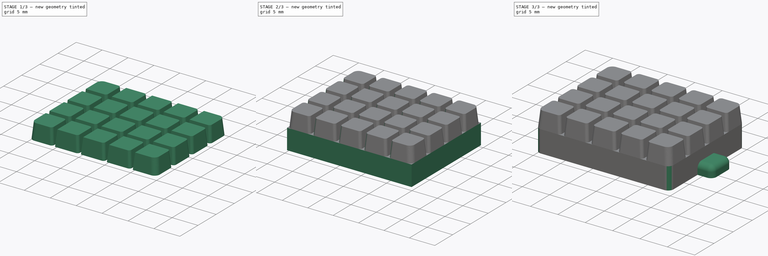
[diagram: build sequence overview — one tinted view per stage of 3, left to right]
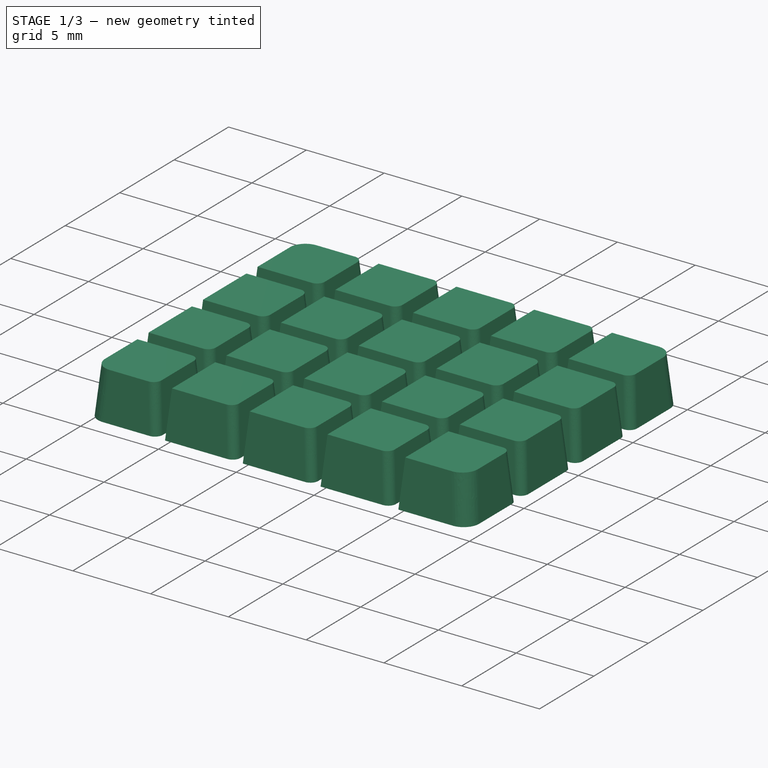
[diagram: stage 1 of 3 — iso view after this stage's code; geometry added in this stage tinted green]
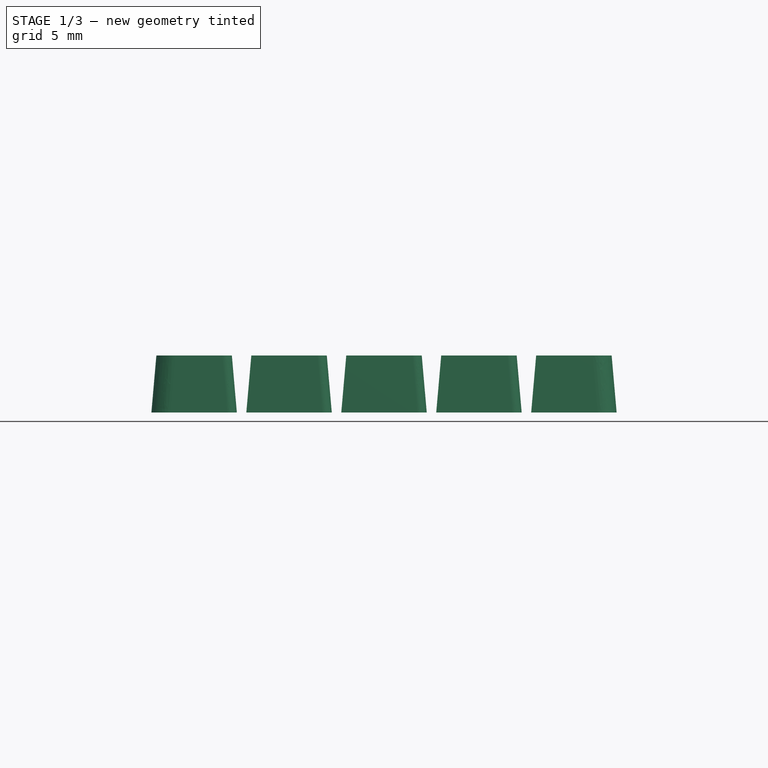
[diagram: stage 1 of 3 — front view after this stage's code; geometry added in this stage tinted green]
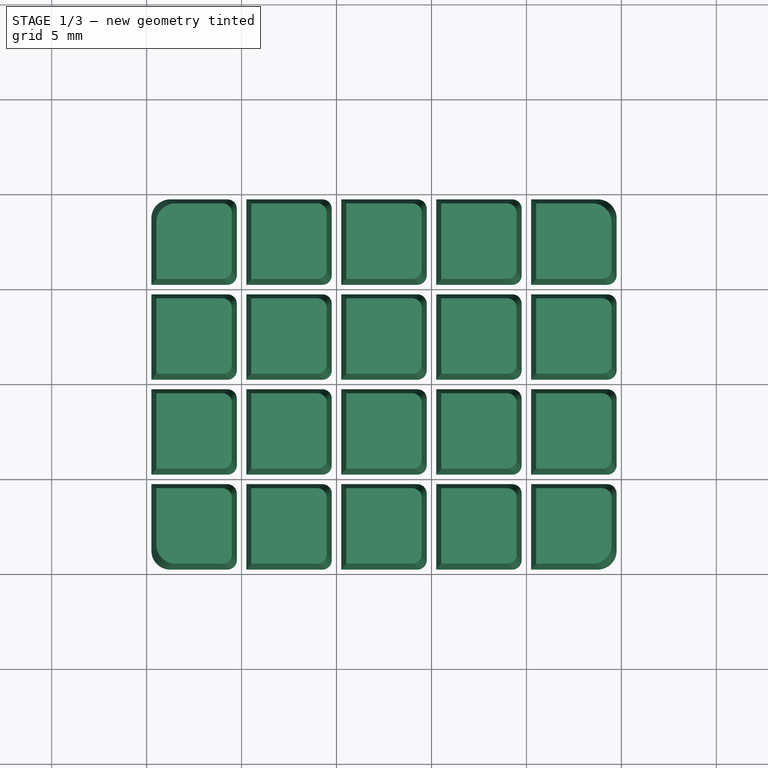
[diagram: stage 1 of 3 — top view after this stage's code; geometry added in this stage tinted green]
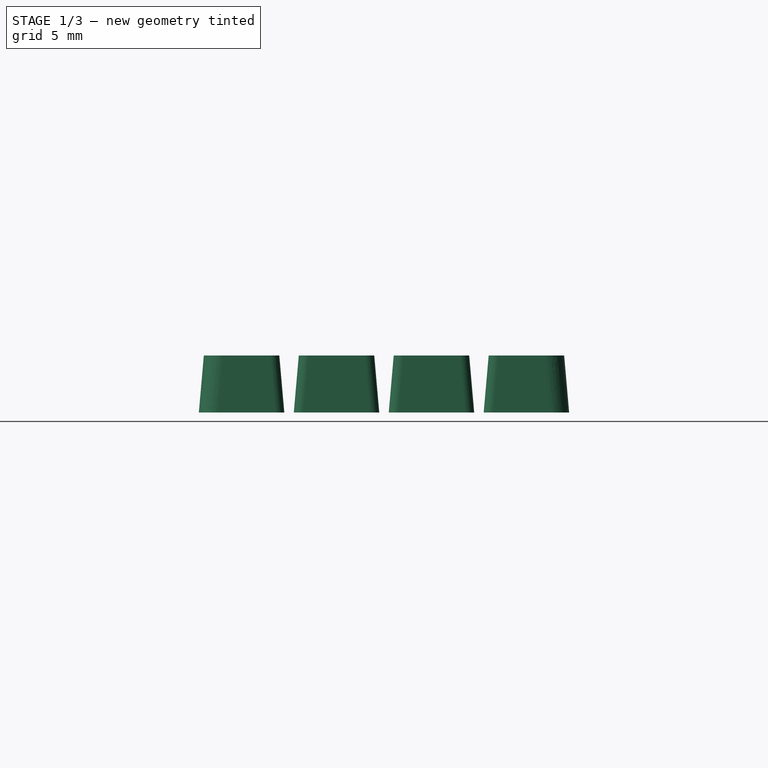
[diagram: stage 1 of 3 — right view after this stage's code; geometry added in this stage tinted green]
FCSTD DOCUMENT  (FreeCAD 0.16R6712 (Git))
Label: weight_matrix
License: All rights reserved
LicenseURL: http://en.wikipedia.org/wiki/All_rights_reserved
objects: Part::Fillet×5, Sketcher::SketchObject×2, Part::Extrusion×2, Spreadsheet::Sheet×1, Part::Box×1
note: 10 computed .brp shape members not serialized (recipe doc carries the construction recipe); baked Part::Feature solids carry a one-line shape summary decoded from their .brp

FEATURE [Sketcher::SketchObject] Sketch
  expr: Constraints[168] = Spreadsheet.space * 2
  expr: Constraints[93] = Spreadsheet.space * 2
  expr: Constraints[91] = Spreadsheet.space * 2
  expr: Constraints[165] = Spreadsheet.space * 2
  expr: Constraints[90] = Spreadsheet.space * 2
  expr: Constraints[169] = Spreadsheet.space
  expr: Constraints[167] = Spreadsheet.space * 2
  expr: Constraints[94] = Spreadsheet.space * 2
  expr: Constraints[97] = Spreadsheet.space
  expr: Constraints[60] = Spreadsheet.space * 2
  expr: Constraints[38] = Spreadsheet.space
  expr: Constraints[11] = Spreadsheet.space
  expr: Constraints[8] = Spreadsheet.width
  expr: Constraints[171] = Spreadsheet.space * 2
  expr: Constraints[39] = Spreadsheet.space
  expr: Constraints[172] = Spreadsheet.space * 2
  expr: Constraints[173] = Spreadsheet.space * 2
  expr: Constraints[40] = Spreadsheet.space
  expr: Constraints[174] = Spreadsheet.space * 2
  expr: Constraints[37] = Spreadsheet.space
  expr: Constraints[166] = Spreadsheet.space * 2
  expr: Constraints[36] = Spreadsheet.space
  expr: Constraints[175] = Spreadsheet.space * 2
  expr: Constraints[170] = Spreadsheet.space * 2
  expr: Constraints[176] = Spreadsheet.space * 2
  expr: Constraints[58] = Spreadsheet.space * 2
  expr: Constraints[92] = Spreadsheet.space * 2
  expr: Constraints[226] = Spreadsheet.space * 2
  expr: Constraints[224] = Spreadsheet.space * 2
  expr: Constraints[223] = Spreadsheet.space * 2
  expr: Constraints[227] = Spreadsheet.space * 2
  expr: Constraints[225] = Spreadsheet.space * 2
  expr: Constraints[59] = Spreadsheet.space * 2
  expr: Constraints[228] = Spreadsheet.space * 2
  expr: Constraints[222] = Spreadsheet.space * 2
  expr: Constraints[41] = Spreadsheet.space
  expr: Constraints[177] = Spreadsheet.space * 2
  expr: Constraints[9] = Spreadsheet.height
  expr: Constraints[10] = Spreadsheet.space
  expr: Constraints[61] = Spreadsheet.space
  expr: Constraints[229] = Spreadsheet.space
  expr: Constraints[181] = Spreadsheet.space
  sketch-geometry (80):
    g0: LineSegment StartX=-4.75 StartY=4.75 StartZ=0 EndX=-0.25 EndY=4.75 EndZ=0
    g1: LineSegment StartX=-0.25 StartY=4.75 StartZ=0 EndX=-0.25 EndY=0.25 EndZ=0
    g2: LineSegment StartX=-0.25 StartY=0.25 StartZ=0 EndX=-4.75 EndY=0.25 EndZ=0
    g3: LineSegment StartX=-4.75 StartY=0.25 StartZ=0 EndX=-4.75 EndY=4.75 EndZ=0
    g4: LineSegment StartX=0.25 StartY=4.75 StartZ=0 EndX=4.75 EndY=4.75 EndZ=0
    g5: LineSegment StartX=4.75 StartY=4.75 StartZ=0 EndX=4.75 EndY=0.25 EndZ=0
    g6: LineSegment StartX=4.75 StartY=0.25 StartZ=0 EndX=0.25 EndY=0.25 EndZ=0
    g7: LineSegment StartX=0.25 StartY=0.25 StartZ=0 EndX=0.25 EndY=4.75 EndZ=0
    g8: LineSegment StartX=0.25 StartY=-0.25 StartZ=0 EndX=4.75 EndY=-0.25 EndZ=0
    g9: LineSegment StartX=4.75 StartY=-0.25 StartZ=0 EndX=4.75 EndY=-4.75 EndZ=0
    g10: LineSegment StartX=4.75 StartY=-4.75 StartZ=0 EndX=0.25 EndY=-4.75 EndZ=0
    g11: LineSegment StartX=0.25 StartY=-4.75 StartZ=0 EndX=0.25 EndY=-0.25 EndZ=0
    g12: LineSegment StartX=-4.75 StartY=-0.25 StartZ=0 EndX=-0.25 EndY=-0.25 EndZ=0
    g13: LineSegment StartX=-0.25 StartY=-0.25 StartZ=0 EndX=-0.25 EndY=-4.75 EndZ=0
    g14: LineSegment StartX=-0.25 StartY=-4.75 StartZ=0 EndX=-4.75 EndY=-4.75 EndZ=0
    g15: LineSegment StartX=-4.75 StartY=-4.75 StartZ=0 EndX=-4.75 EndY=-0.25 EndZ=0
    g16: LineSegment StartX=-4.75 StartY=-5.25 StartZ=0 EndX=-0.25 EndY=-5.25 EndZ=0
    g17: LineSegment StartX=-0.25 StartY=-5.25 StartZ=0 EndX=-0.25 EndY=-9.75 EndZ=0
    g18: LineSegment StartX=-0.25 StartY=-9.75 StartZ=0 EndX=-4.75 EndY=-9.75 EndZ=0
    g19: LineSegment StartX=-4.75 StartY=-9.75 StartZ=0 EndX=-4.75 EndY=-5.25 EndZ=0
    g20: LineSegment StartX=0.25 StartY=-5.25 StartZ=0 EndX=4.75 EndY=-5.25 EndZ=0
    g21: LineSegment StartX=4.75 StartY=-5.25 StartZ=0 EndX=4.75 EndY=-9.75 EndZ=0
    g22: LineSegment StartX=4.75 StartY=-9.75 StartZ=0 EndX=0.25 EndY=-9.75 EndZ=0
    g23: LineSegment StartX=0.25 StartY=-9.75 StartZ=0 EndX=0.25 EndY=-5.25 EndZ=0
    g24: LineSegment StartX=5.25 StartY=4.75 StartZ=0 EndX=9.75 EndY=4.75 EndZ=0
    g25: LineSegment StartX=9.75 StartY=4.75 StartZ=0 EndX=9.75 EndY=0.25 EndZ=0
    g26: LineSegment StartX=9.75 StartY=0.25 StartZ=0 EndX=5.25 EndY=0.25 EndZ=0
    g27: LineSegment StartX=5.25 StartY=0.25 StartZ=0 EndX=5.25 EndY=4.75 EndZ=0
    g28: LineSegment StartX=5.25 StartY=-0.25 StartZ=0 EndX=9.75 EndY=-0.25 EndZ=0
    g29: LineSegment StartX=9.75 StartY=-0.25 StartZ=0 EndX=9.75 EndY=-4.75 EndZ=0
    g30: LineSegment StartX=9.75 StartY=-4.75 StartZ=0 EndX=5.25 EndY=-4.75 EndZ=0
    g31: LineSegment StartX=5.25 StartY=-4.75 StartZ=0 EndX=5.25 EndY=-0.25 EndZ=0
    g32: LineSegment StartX=5.25 StartY=-5.25 StartZ=0 EndX=9.75 EndY=-5.25 EndZ=0
    g33: LineSegment StartX=9.75 StartY=-5.25 StartZ=0 EndX=9.75 EndY=-9.75 EndZ=0
    g34: LineSegment StartX=9.75 StartY=-9.75 StartZ=0 EndX=5.25 EndY=-9.75 EndZ=0
    g35: LineSegment StartX=5.25 StartY=-9.75 StartZ=0 EndX=5.25 EndY=-5.25 EndZ=0
    g36: LineSegment StartX=-4.75 StartY=-10.25 StartZ=0 EndX=-0.25 EndY=-10.25 EndZ=0
    g37: LineSegment StartX=-0.25 StartY=-10.25 StartZ=0 EndX=-0.25 EndY=-14.75 EndZ=0
    g38: LineSegment StartX=-0.25 StartY=-14.75 StartZ=0 EndX=-4.75 EndY=-14.75 EndZ=0
    g39: LineSegment StartX=-4.75 StartY=-14.75 StartZ=0 EndX=-4.75 EndY=-10.25 EndZ=0
    g40: LineSegment StartX=0.25 StartY=-10.25 StartZ=0 EndX=4.75 EndY=-10.25 EndZ=0
    g41: LineSegment StartX=4.75 StartY=-10.25 StartZ=0 EndX=4.75 EndY=-14.75 EndZ=0
    g42: LineSegment StartX=4.75 StartY=-14.75 StartZ=0 EndX=0.25 EndY=-14.75 EndZ=0
    g43: LineSegment StartX=0.25 StartY=-14.75 StartZ=0 EndX=0.25 EndY=-10.25 EndZ=0
    g44: LineSegment StartX=5.25 StartY=-10.25 StartZ=0 EndX=9.75 EndY=-10.25 EndZ=0
    g45: LineSegment StartX=9.75 StartY=-10.25 StartZ=0 EndX=9.75 EndY=-14.75 EndZ=0
    g46: LineSegment StartX=9.75 StartY=-14.75 StartZ=0 EndX=5.25 EndY=-14.75 EndZ=0
    g47: LineSegment StartX=5.25 StartY=-14.75 StartZ=0 EndX=5.25 EndY=-10.25 EndZ=0
    g48: LineSegment StartX=10.25 StartY=-10.25 StartZ=0 EndX=14.75 EndY=-10.25 EndZ=0
    g49: LineSegment StartX=14.75 StartY=-10.25 StartZ=0 EndX=14.75 EndY=-14.75 EndZ=0
    g50: LineSegment StartX=14.75 StartY=-14.75 StartZ=0 EndX=10.25 EndY=-14.75 EndZ=0
    g51: LineSegment StartX=10.25 StartY=-14.75 StartZ=0 EndX=10.25 EndY=-10.25 EndZ=0
    g52: LineSegment StartX=10.25 StartY=-5.25 StartZ=0 EndX=14.75 EndY=-5.25 EndZ=0
    g53: LineSegment StartX=14.75 StartY=-5.25 StartZ=0 EndX=14.75 EndY=-9.75 EndZ=0
    g54: LineSegment StartX=14.75 StartY=-9.75 StartZ=0 EndX=10.25 EndY=-9.75 EndZ=0
    g55: LineSegment StartX=10.25 StartY=-9.75 StartZ=0 EndX=10.25 EndY=-5.25 EndZ=0
    g56: LineSegment StartX=10.25 StartY=-0.25 StartZ=0 EndX=14.75 EndY=-0.25 EndZ=0
    g57: LineSegment StartX=14.75 StartY=-0.25 StartZ=0 EndX=14.75 EndY=-4.75 EndZ=0
    g58: LineSegment StartX=14.75 StartY=-4.75 StartZ=0 EndX=10.25 EndY=-4.75 EndZ=0
    g59: LineSegment StartX=10.25 StartY=-4.75 StartZ=0 EndX=10.25 EndY=-0.25 EndZ=0
    g60: LineSegment StartX=10.25 StartY=4.75 StartZ=0 EndX=14.75 EndY=4.75 EndZ=0
    g61: LineSegment StartX=14.75 StartY=4.75 StartZ=0 EndX=14.75 EndY=0.25 EndZ=0
    g62: LineSegment StartX=14.75 StartY=0.25 StartZ=0 EndX=10.25 EndY=0.25 EndZ=0
    g63: LineSegment StartX=10.25 StartY=0.25 StartZ=0 EndX=10.25 EndY=4.75 EndZ=0
    g64: LineSegment StartX=15.25 StartY=4.75 StartZ=0 EndX=19.75 EndY=4.75 EndZ=0
    g65: LineSegment StartX=19.75 StartY=4.75 StartZ=0 EndX=19.75 EndY=0.25 EndZ=0
    g66: LineSegment StartX=19.75 StartY=0.25 StartZ=0 EndX=15.25 EndY=0.25 EndZ=0
    g67: LineSegment StartX=15.25 StartY=0.25 StartZ=0 EndX=15.25 EndY=4.75 EndZ=0
    g68: LineSegment StartX=15.25 StartY=-0.25 StartZ=0 EndX=19.75 EndY=-0.25 EndZ=0
    g69: LineSegment StartX=19.75 StartY=-0.25 StartZ=0 EndX=19.75 EndY=-4.75 EndZ=0
    g70: LineSegment StartX=19.75 StartY=-4.75 StartZ=0 EndX=15.25 EndY=-4.75 EndZ=0
    g71: LineSegment StartX=15.25 StartY=-4.75 StartZ=0 EndX=15.25 EndY=-0.25 EndZ=0
    g72: LineSegment StartX=15.25 StartY=-5.25 StartZ=0 EndX=19.75 EndY=-5.25 EndZ=0
    g73: LineSegment StartX=19.75 StartY=-5.25 StartZ=0 EndX=19.75 EndY=-9.75 EndZ=0
    g74: LineSegment StartX=19.75 StartY=-9.75 StartZ=0 EndX=15.25 EndY=-9.75 EndZ=0
    g75: LineSegment StartX=15.25 StartY=-9.75 StartZ=0 EndX=15.25 EndY=-5.25 EndZ=0
    g76: LineSegment StartX=15.25 StartY=-10.25 StartZ=0 EndX=19.75 EndY=-10.25 EndZ=0
    g77: LineSegment StartX=19.75 StartY=-10.25 StartZ=0 EndX=19.75 EndY=-14.75 EndZ=0
    g78: LineSegment StartX=19.75 StartY=-14.75 StartZ=0 EndX=15.25 EndY=-14.75 EndZ=0
    g79: LineSegment StartX=15.25 StartY=-14.75 StartZ=0 EndX=15.25 EndY=-10.25 EndZ=0
  constraints (241):
    c: Coincident(g0,g1)
    c: Coincident(g1,g2)
    c: Coincident(g2,g3)
    c: Coincident(g3,g0)
    c: Horizontal(g0)
    c: Horizontal(g2)
    c: Vertical(g1)
    c: Vertical(g3)
    c: DistanceX(g2,g1) = 4.5
    c: DistanceY(g2,g0) = 4.5
    c: DistanceX(g1,g-1) = 0.25
    c: DistanceY(g-1,g1) = 0.25
    c: Coincident(g4,g5)
    c: Coincident(g5,g6)
    c: Coincident(g6,g7)
    c: Coincident(g7,g4)
    c: Horizontal(g4)
    c: Horizontal(g6)
    c: Vertical(g5)
    c: Vertical(g7)
    c: Coincident(g8,g9)
    c: Coincident(g9,g10)
    c: Coincident(g10,g11)
    c: Coincident(g11,g8)
    c: Horizontal(g8)
    c: Horizontal(g10)
    c: Vertical(g9)
    c: Vertical(g11)
    c: Coincident(g12,g13)
    c: Coincident(g13,g14)
    c: Coincident(g14,g15)
    c: Coincident(g15,g12)
    c: Horizontal(g12)
    c: Horizontal(g14)
    c: Vertical(g13)
    c: Vertical(g15)
    c: DistanceX(g-1,g6) = 0.25
    c: DistanceY(g-1,g6) = 0.25
    c: DistanceY(g8,g-1) = 0.25
    c: DistanceX(g-1,g8) = 0.25
    c: DistanceX(g12,g-1) = 0.25
    c: DistanceY(g12,g-1) = 0.25
    c: Coincident(g16,g17)
    c: Coincident(g17,g18)
    c: Coincident(g18,g19)
    c: Coincident(g19,g16)
    c: Horizontal(g16)
    c: Horizontal(g18)
    c: Vertical(g17)
    c: Vertical(g19)
    c: Coincident(g20,g21)
    c: Coincident(g21,g22)
    c: Coincident(g22,g23)
    c: Coincident(g23,g20)
    c: Horizontal(g20)
    c: Horizontal(g22)
    c: Vertical(g21)
    c: Vertical(g23)
    c: DistanceY(g16,g13) = 0.5
    c: DistanceY(g20,g10) = 0.5
    c: DistanceX(g16,g20) = 0.5
    c: DistanceX(g-1,g20) = 0.25
    c: Coincident(g24,g25)
    c: Coincident(g25,g26)
    c: Coincident(g26,g27)
    c: Coincident(g27,g24)
    c: Horizontal(g24)
    c: Horizontal(g26)
    c: Vertical(g25)
    c: Vertical(g27)
    c: Coincident(g28,g29)
    c: Coincident(g29,g30)
    c: Coincident(g30,g31)
    c: Coincident(g31,g28)
    c: Horizontal(g28)
    c: Horizontal(g30)
    c: Vertical(g29)
    c: Vertical(g31)
    c: Coincident(g32,g33)
    c: Coincident(g33,g34)
    c: Coincident(g34,g35)
    c: Coincident(g35,g32)
    c: Horizontal(g32)
    c: Horizontal(g34)
    c: Vertical(g33)
    c: Vertical(g35)
    c: Equal(g24,g28)
    c: Equal(g32,g24)
    c: Equal(g7,g27)
    c: Equal(g7,g25)
    c: DistanceX(g5,g26) = 0.5
    c: DistanceX(g8,g28) = 0.5
    c: DistanceX(g20,g32) = 0.5
    c: DistanceY(g32,g29) = 0.5
    c: DistanceY(g28,g25) = 0.5
    c: Equal(g34,g22)
    c: Equal(g31,g9)
    c: DistanceY(g-1,g25) = 0.25
    c: Coincident(g36,g37)
    c: Coincident(g37,g38)
    c: Coincident(g38,g39)
    c: Coincident(g39,g36)
    c: Horizontal(g36)
    c: Horizontal(g38)
    c: Vertical(g37)
    c: Vertical(g39)
    c: Coincident(g40,g41)
    c: Coincident(g41,g42)
    c: Coincident(g42,g43)
    c: Coincident(g43,g40)
    c: Horizontal(g40)
    c: Horizontal(g42)
    c: Vertical(g41)
    c: Vertical(g43)
    c: Coincident(g44,g45)
    c: Coincident(g45,g46)
    c: Coincident(g46,g47)
    c: Coincident(g47,g44)
    c: Horizontal(g44)
    c: Horizontal(g46)
    c: Vertical(g45)
    c: Vertical(g47)
    c: Coincident(g48,g49)
    c: Coincident(g49,g50)
    c: Coincident(g50,g51)
    c: Coincident(g51,g48)
    c: Horizontal(g48)
    c: Horizontal(g50)
    c: Vertical(g49)
    c: Vertical(g51)
    c: Coincident(g52,g53)
    c: Coincident(g53,g54)
    c: Coincident(g54,g55)
    c: Coincident(g55,g52)
    c: Horizontal(g52)
    c: Horizontal(g54)
    c: Vertical(g53)
    c: Vertical(g55)
    c: Coincident(g56,g57)
    c: Coincident(g57,g58)
    c: Coincident(g58,g59)
    c: Coincident(g59,g56)
    c: Horizontal(g56)
    c: Horizontal(g58)
    c: Vertical(g57)
    c: Vertical(g59)
    c: Coincident(g60,g61)
    c: Coincident(g61,g62)
    c: Coincident(g62,g63)
    c: Coincident(g63,g60)
    c: Horizontal(g60)
    c: Horizontal(g62)
    c: Vertical(g61)
    c: Vertical(g63)
    c: Equal(g39,g3)
    c: Equal(g43,g3)
    c: Equal(g47,g3)
    c: Equal(g51,g3)
    c: Equal(g55,g3)
    c: Equal(g59,g3)
    c: Equal(g63,g3)
    c: Equal(g60,g0)
    c: Equal(g56,g0)
    c: Equal(g52,g0)
    c: Equal(g48,g0)
    c: DistanceX(g24,g60) = 0.5
    c: DistanceX(g28,g56) = 0.5
    c: DistanceY(g56,g62) = 0.5
    c: DistanceY(g52,g58) = 0.5
    c: DistanceY(g-1,g62) = 0.25
    c: DistanceX(g33,g54) = 0.5
    c: DistanceX(g44,g48) = 0.5
    c: DistanceY(g48,g54) = 0.5
    c: DistanceY(g36,g18) = 0.5
    c: DistanceY(g40,g22) = 0.5
    c: DistanceY(g44,g34) = 0.5
    c: DistanceX(g36,g40) = 0.5
    c: DistanceX(g40,g44) = 0.5
    c: Equal(g44,g0)
    c: Equal(g40,g0)
    c: Equal(g36,g0)
    c: DistanceX(g37,g-1) = 0.25
    c: Coincident(g64,g65)
    c: Coincident(g65,g66)
    c: Coincident(g66,g67)
    c: Coincident(g67,g64)
    c: Horizontal(g64)
    c: Horizontal(g66)
    c: Vertical(g65)
    c: Vertical(g67)
    c: Coincident(g68,g69)
    c: Coincident(g69,g70)
    c: Coincident(g70,g71)
    c: Coincident(g71,g68)
    c: Horizontal(g68)
    c: Horizontal(g70)
    c: Vertical(g69)
    c: Vertical(g71)
    c: Coincident(g72,g73)
    c: Coincident(g73,g74)
    c: Coincident(g74,g75)
    c: Coincident(g75,g72)
    c: Horizontal(g72)
    c: Horizontal(g74)
    c: Vertical(g73)
    c: Vertical(g75)
    c: Coincident(g76,g77)
    c: Coincident(g77,g78)
    c: Coincident(g78,g79)
    c: Coincident(g79,g76)
    c: Horizontal(g76)
    c: Horizontal(g78)
    c: Vertical(g77)
    c: Vertical(g79)
    c: Equal(g76,g72)
    c: Equal(g72,g68)
    c: Equal(g68,g64)
    c: Equal(g64,g0)
    c: Equal(g65,g69)
    c: Equal(g69,g73)
    c: Equal(g73,g77)
    c: Equal(g77,g3)
    c: DistanceX(g48,g76) = 0.5
    c: DistanceY(g76,g74) = 0.5
    c: DistanceX(g53,g74) = 0.5
    c: DistanceY(g72,g70) = 0.5
    c: DistanceX(g57,g70) = 0.5
    c: DistanceX(g61,g66) = 0.5
    c: DistanceY(g68,g66) = 0.5
    c: DistanceY(g-1,g66) = 0.25
    c: Equal(g12,g8)
    c: Equal(g8,g4)
    c: Equal(g4,g0)
    c: Equal(g20,g0)
    c: Equal(g11,g15)
    c: Equal(g15,g19)
    c: Equal(g19,g3)
    c: Equal(g7,g3)
    c: Equal(g16,g0)
    c: Equal(g35,g3)
    c: Equal(g23,g3)
FEATURE [Part::Extrusion] Extrude001
  Base = -> Sketch
  Dir = (0,0,3)
  Solid = true
  TaperAngle = -5
  expr: Dir.z = Spreadsheet.extrude_height
FEATURE [Part::Fillet] Fillet002
  Base = -> Extrude001
  Edges = 4 edges r=1: [Edge4,Edge117,Edge194,Edge234]
FEATURE [Part::Fillet] Fillet003
  Base = -> Fillet002
  Edges = 38 edges r=0.5: [Edge3,Edge11,Edge18,Edge27,Edge45,Edge48,Edge62,Edge66,Edge74,Edge78,Edge86,Edge90,Edge98,Edge102,Edge110,Edge114,Edge122,Edge126,Edge134,Edge138,Edge146,Edge150,Edge158,Edge162,Edge170,Edge174,Edge182,Edge186,Edge194,Edge198,Edge206,Edge210,Edge218,Edge222,Edge230,Edge234,Edge242,Edge246]
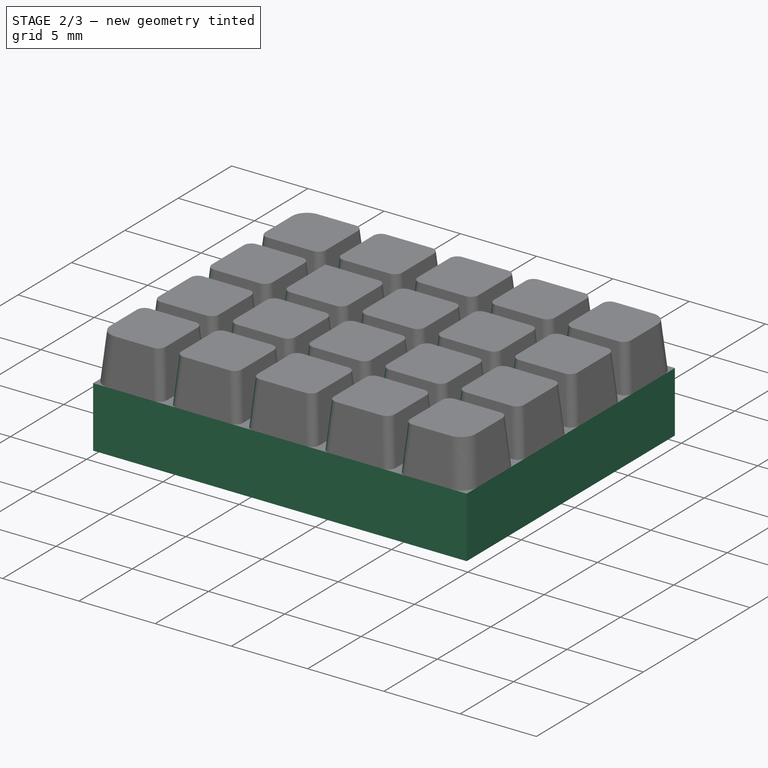
[diagram: stage 2 of 3 — iso view after this stage's code; geometry added in this stage tinted green]
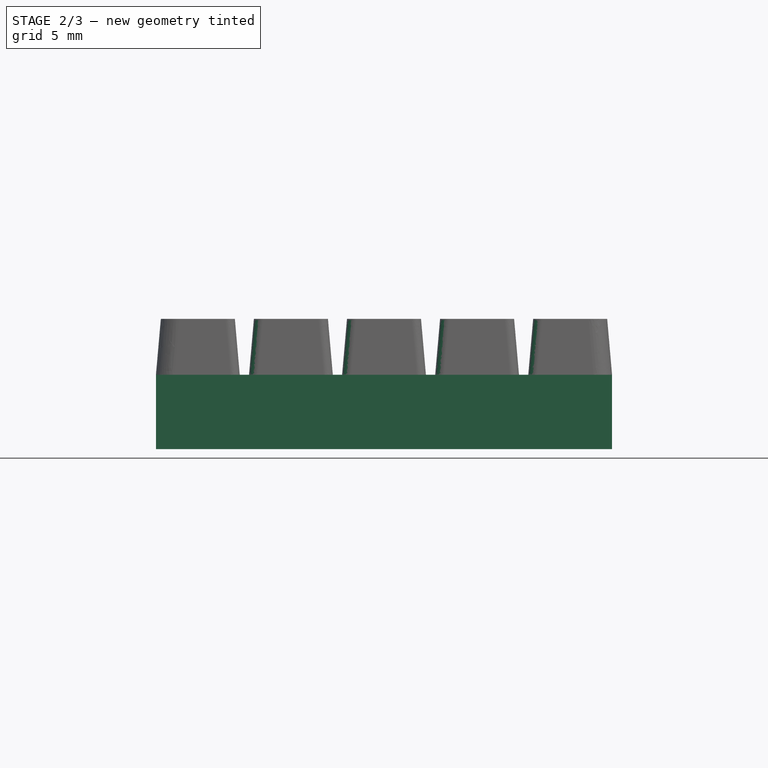
[diagram: stage 2 of 3 — front view after this stage's code; geometry added in this stage tinted green]
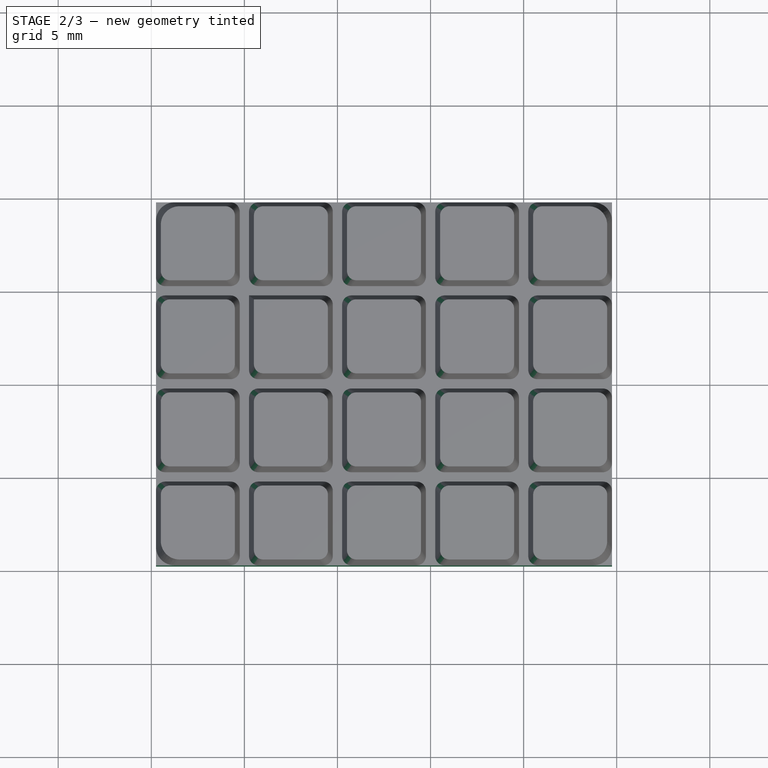
[diagram: stage 2 of 3 — top view after this stage's code; geometry added in this stage tinted green]
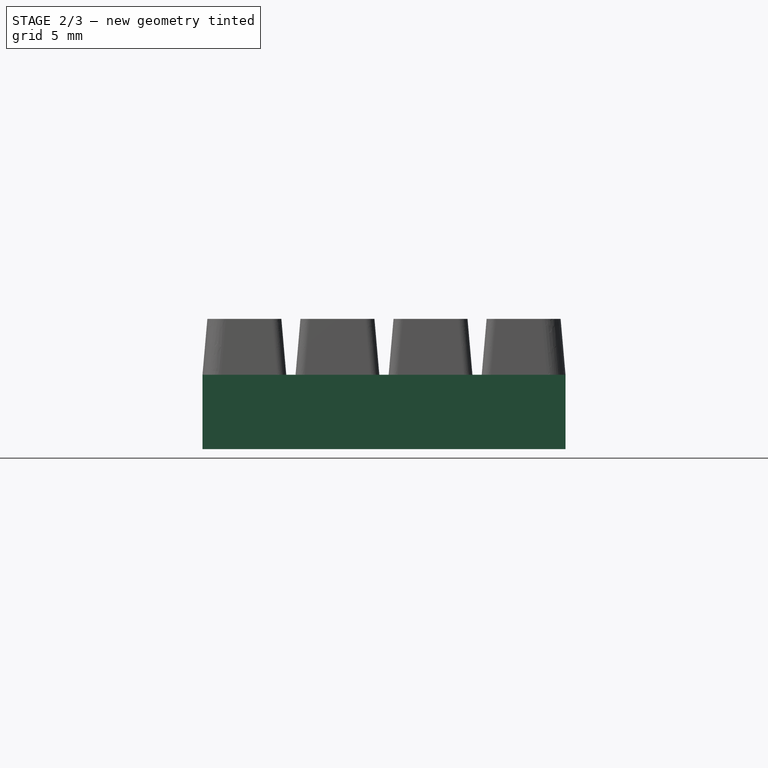
[diagram: stage 2 of 3 — right view after this stage's code; geometry added in this stage tinted green]
FEATURE [Spreadsheet::Sheet] Spreadsheet
  cells = A2=h; B2(height)==4.5mm; A3=w; B3(width)==4.5mm; A4=s; B4(space)==0.25mm; A5=extrude_height; B5(extrude_height)=3; A6=base_height; B6(base_height)=4
FEATURE [Sketcher::SketchObject] Sketch001
  expr: Constraints[11] = Spreadsheet.space * 6 + Spreadsheet.height * 4
  expr: Constraints[10] = Spreadsheet.space + Spreadsheet.height
  expr: Constraints[9] = Spreadsheet.space + Spreadsheet.width
  expr: Constraints[8] = Spreadsheet.space * 8 + Spreadsheet.width * 5
  sketch-geometry (4):
    g0: LineSegment StartX=-4.75 StartY=4.75 StartZ=0 EndX=19.75 EndY=4.75 EndZ=0
    g1: LineSegment StartX=19.75 StartY=4.75 StartZ=0 EndX=19.75 EndY=-14.75 EndZ=0
    g2: LineSegment StartX=19.75 StartY=-14.75 StartZ=0 EndX=-4.75 EndY=-14.75 EndZ=0
    g3: LineSegment StartX=-4.75 StartY=-14.75 StartZ=0 EndX=-4.75 EndY=4.75 EndZ=0
  constraints (12):
    c: Coincident(g0,g1)
    c: Coincident(g1,g2)
    c: Coincident(g2,g3)
    c: Coincident(g3,g0)
    c: Horizontal(g0)
    c: Horizontal(g2)
    c: Vertical(g1)
    c: Vertical(g3)
    c: DistanceX(g0,g0) = 24.5
    c: DistanceX(g0,g-1) = 4.75
    c: DistanceY(g-1,g0) = 4.75
    c: DistanceY(g2,g0) = 19.5
FEATURE [Part::Extrusion] Extrude002
  Base = -> Sketch001
  Dir = (0,0,-4)
  Solid = true
  expr: Dir.z = -Spreadsheet.base_height
FEATURE [Part::Fillet] Fillet004
  Base = -> Fillet003
  Edges = 37 edges r=0.5: [Edge20,Edge41,Edge56,Edge58,Edge77,Edge78,Edge81,Edge91,Edge109,Edge117,Edge127,Edge135,Edge145,Edge153,Edge163,Edge171,Edge181,Edge189,Edge199,Edge207,Edge217,Edge225,Edge235,Edge243,Edge253,Edge261,Edge271,Edge279,Edge289,Edge297,Edge307,Edge315,Edge325,Edge333,Edge343,Edge351,Edge361]
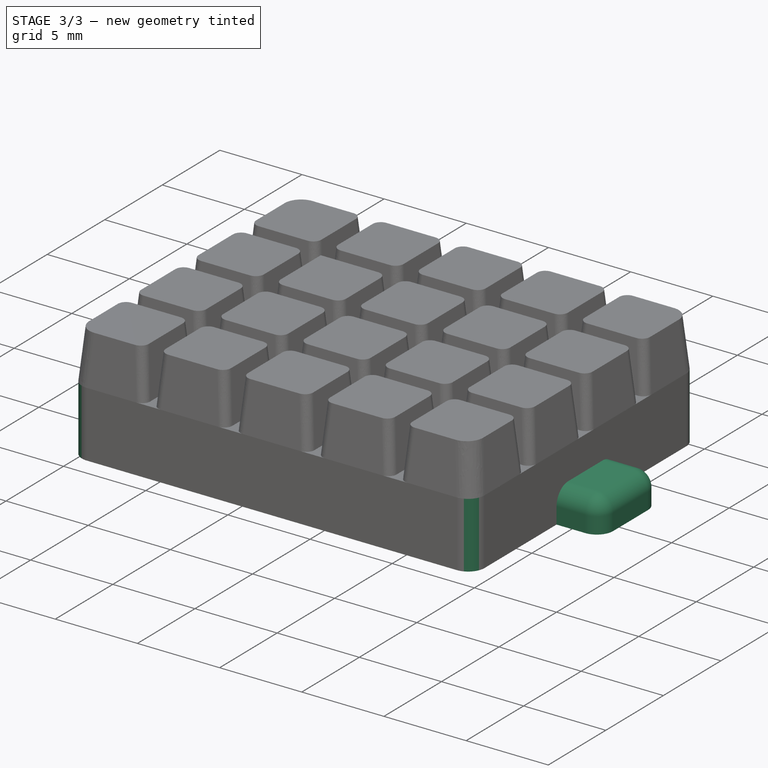
[diagram: stage 3 of 3 — iso view after this stage's code; geometry added in this stage tinted green]
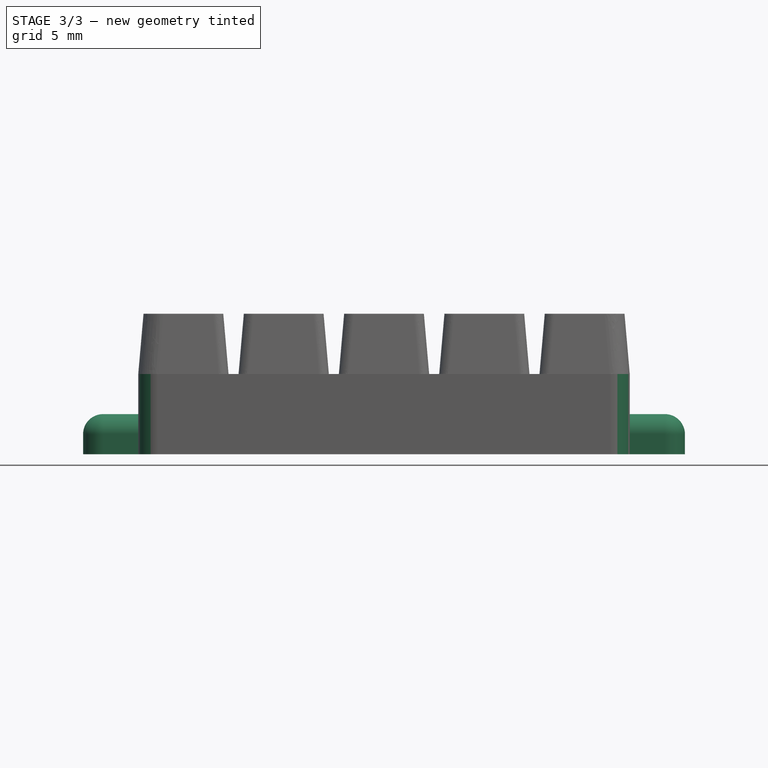
[diagram: stage 3 of 3 — front view after this stage's code; geometry added in this stage tinted green]
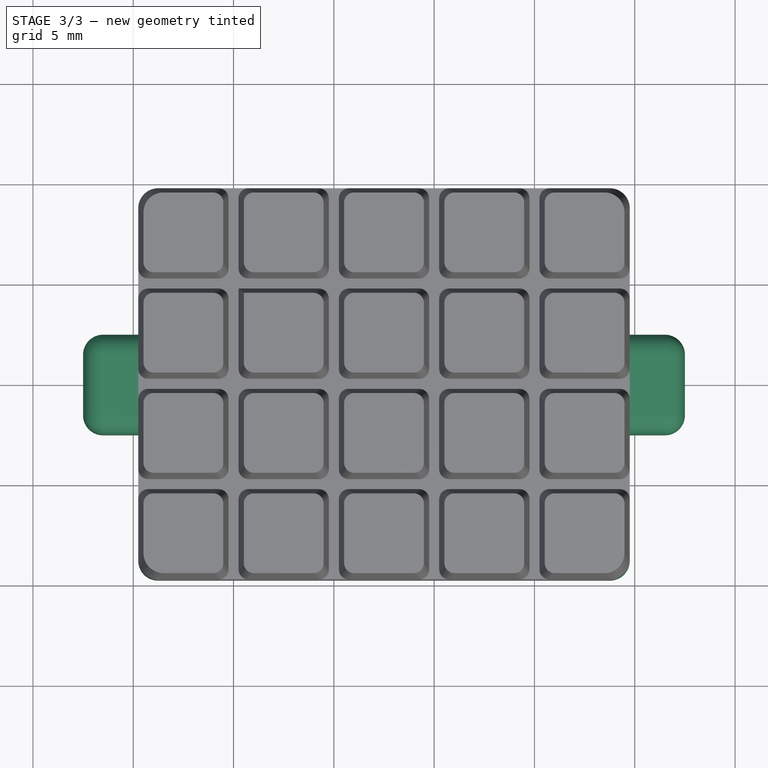
[diagram: stage 3 of 3 — top view after this stage's code; geometry added in this stage tinted green]
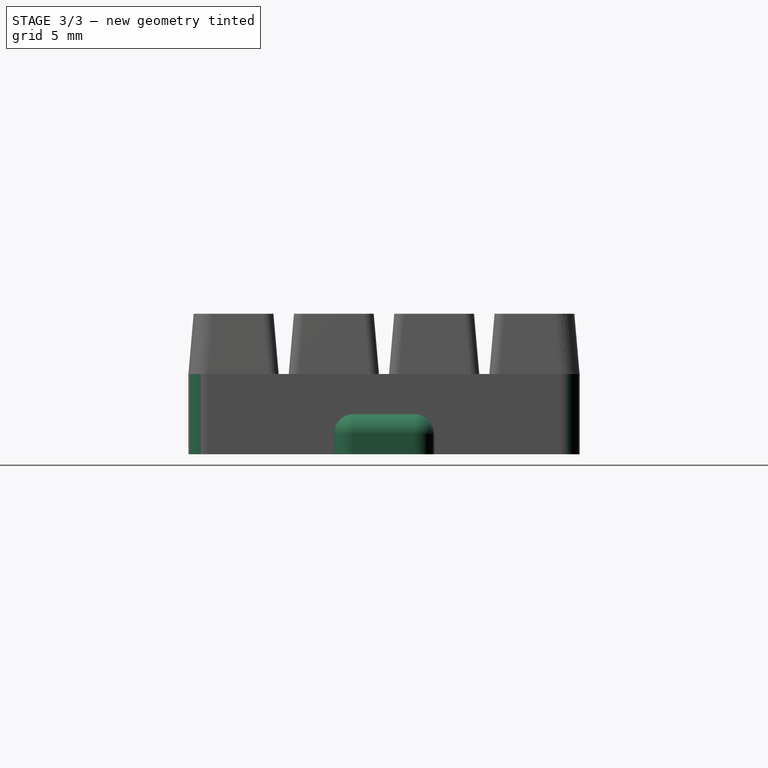
[diagram: stage 3 of 3 — right view after this stage's code; geometry added in this stage tinted green]
FEATURE [Part::Box] Box  label="Cube"
  Height = 2
  Length = 30
  Placement = pos=(-7.5,-7.5,-4) rot=(0,0,1;0rad)
  Width = 5
  expr: Placement.Base.z = -Spreadsheet.base_height
FEATURE [Part::Fillet] Fillet
  Base = -> Box
  Edges = 8 edges r=1: [Edge1,Edge2,Edge3,Edge5,Edge6,Edge7,Edge10,Edge12]
FEATURE [Part::Fillet] Fillet001
  Base = -> Extrude002
  Edges = 4 edges r=1: [Edge1,Edge2,Edge5,Edge8]
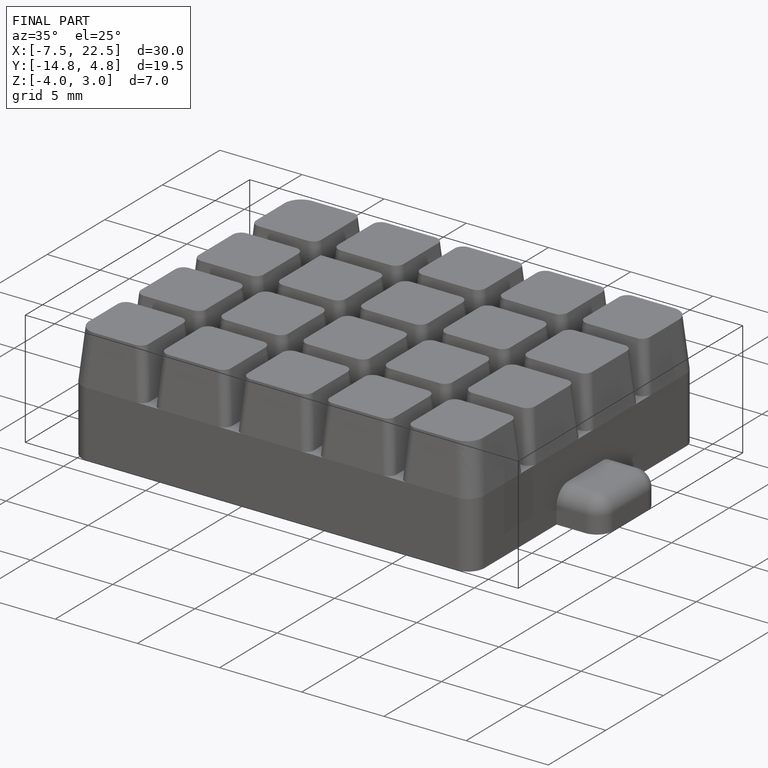
[diagram: finished part — iso view with bounding-box wireframe]
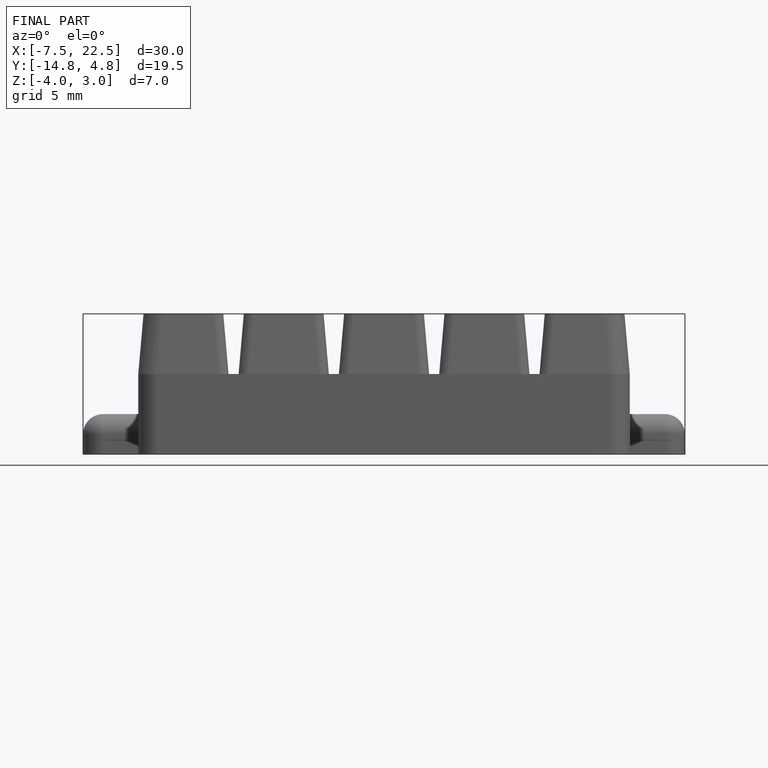
[diagram: finished part — front view with bounding-box wireframe]
